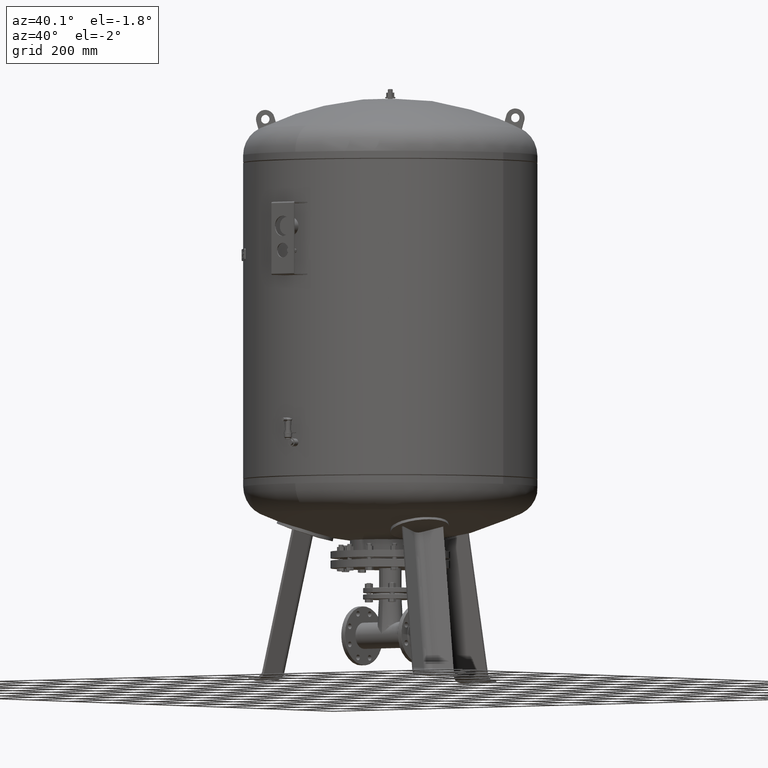
[diagram: clean part render]
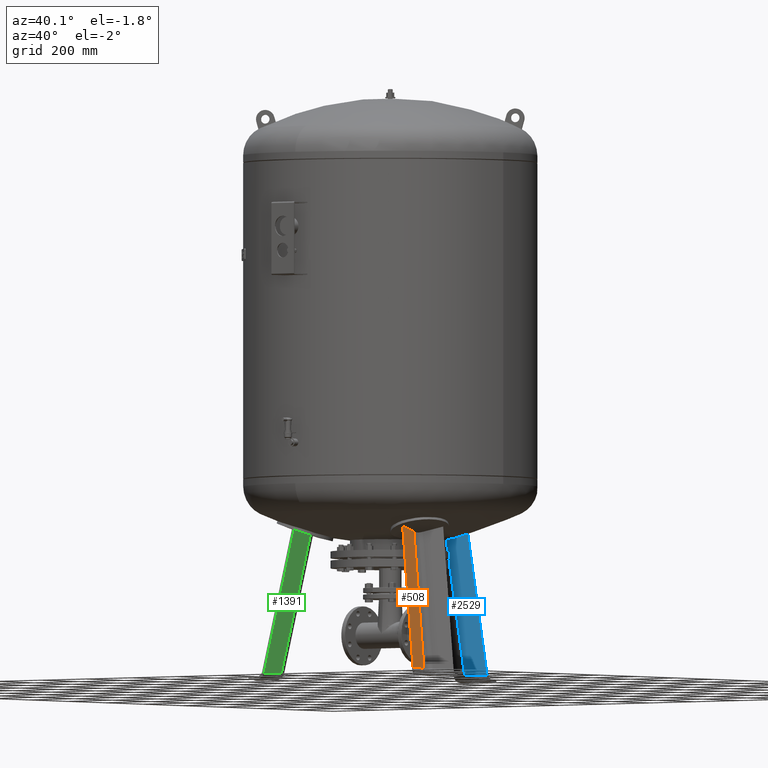
[diagram: same view with three faces highlighted in distinct colors, each labeled with its STEP entity id]
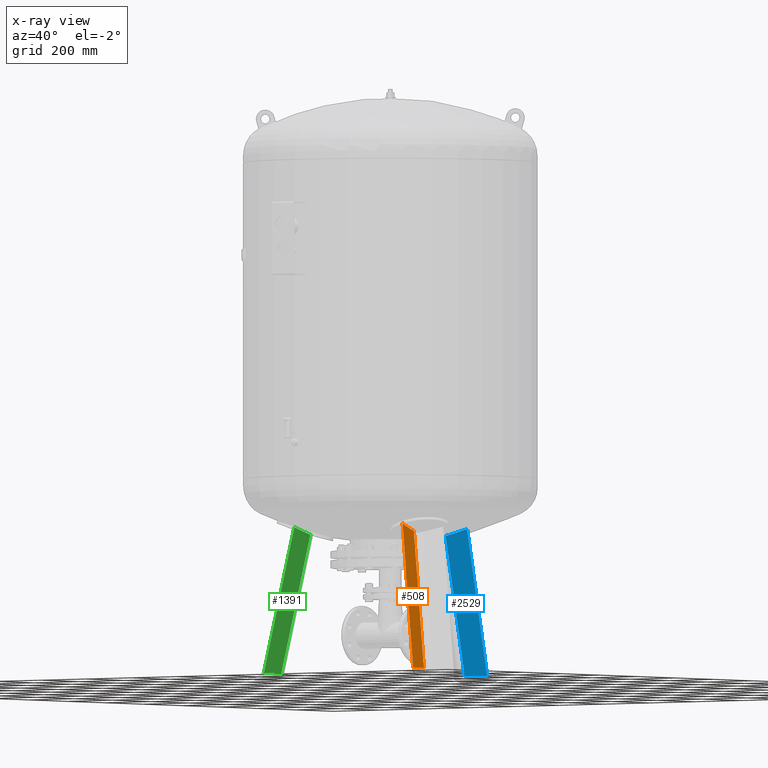
[diagram: x-ray of the same camera — body ghosted, the three highlighted faces saturated]
A machine part, auxiliary view with three faces highlighted in distinct colors.
The next image is the same camera in x-ray (body ghosted, the three faces saturated) — at least one of them is partly hidden behind the body in this view.
Their STEP definitions:

[orange] entity #508 — the highlighted planar face has unit normal (0.9697, 0.1854, 0.1588).
#171=CARTESIAN_POINT('',(319.830394192792940,-203.286932639186120,27.029948423057292));
#172=VERTEX_POINT('',#171);
#244=CARTESIAN_POINT('',(233.833770814888480,-153.636758982554060,494.201352274706380));
#245=VERTEX_POINT('',#244);
#335=CARTESIAN_POINT('',(243.545459295347570,-224.716959764807510,517.895129107029220));
#336=VERTEX_POINT('',#335);
#344=CARTESIAN_POINT('',(233.833770814888480,-153.636758982554060,494.201352274706380));
#345=CARTESIAN_POINT('',(234.145636525133370,-155.785837446084660,494.806356446810070));
#346=CARTESIAN_POINT('',(234.455869085461960,-157.936627893456380,495.423332669959050));
#347=CARTESIAN_POINT('',(235.806048865956340,-167.351452042096270,498.171859028429080));
#348=CARTESIAN_POINT('',(236.830002651362290,-174.632430311933630,500.420860589925100));
#349=CARTESIAN_POINT('',(239.805336106046810,-196.170965889859760,507.401880690415790));
#350=CARTESIAN_POINT('',(241.709926838352800,-210.458800609479230,512.454975054419260));
#351=CARTESIAN_POINT('',(243.545459295347570,-224.716959764807510,517.895129107029220));
#352=B_SPLINE_CURVE_WITH_KNOTS('',3,(#344,#345,#346,#347,#348,#349,#350,#351),.UNSPECIFIED.,.F.,.U.,(4,2,2,4),(5.937335443723129,6.588195328792665,8.784260438390220,13.073486937020286),.UNSPECIFIED.);
#353=EDGE_CURVE('',#245,#336,#352,.T.);
#480=CARTESIAN_POINT('',(333.269673407839720,-192.413335654755090,-67.735293817669458));
#481=DIRECTION('',(0.969740897595359,0.185430570007244,0.158802063077709));
#482=DIRECTION('',(-0.180056805991956,0.103955845408880,0.978147600733806));
#483=AXIS2_PLACEMENT_3D('',#480,#481,#482);
#484=PLANE('',#483);
#485=CARTESIAN_POINT('',(333.903618473282390,-276.885267289667350,27.029948423057292));
#486=VERTEX_POINT('',#485);
#487=CARTESIAN_POINT('',(333.903618473282390,-276.885267289667350,27.029948423057292));
#488=DIRECTION('',(-0.180056805991956,0.103955845408880,0.978147600733805));
#489=VECTOR('',#488,501.831400818981990);
#490=LINE('',#487,#489);
#491=EDGE_CURVE('',#486,#336,#490,.T.);
#492=ORIENTED_EDGE('',*,*,#491,.F.);
#493=CARTESIAN_POINT('',(319.830394192792940,-203.286932639186120,27.029948423057292));
#494=DIRECTION('',(0.187813845079449,-0.982204642422582,0.0));
#495=VECTOR('',#494,74.931772333057651);
#496=LINE('',#493,#495);
#497=EDGE_CURVE('',#172,#486,#496,.T.);
#498=ORIENTED_EDGE('',*,*,#497,.F.);
#499=CARTESIAN_POINT('',(233.833770814888480,-153.636758982554060,494.201352274706380));
#500=DIRECTION('',(0.180056805991956,-0.103955845408880,-0.978147600733806));
#501=VECTOR('',#500,477.608290917625770);
#502=LINE('',#499,#501);
#503=EDGE_CURVE('',#245,#172,#502,.T.);
#504=ORIENTED_EDGE('',*,*,#503,.F.);
#505=ORIENTED_EDGE('',*,*,#353,.T.);
#506=EDGE_LOOP('',(#492,#498,#504,#505));
#507=FACE_OUTER_BOUND('',#506,.T.);
#508=ADVANCED_FACE('',(#507),#484,.T.);

[blue] entity #2529 — the highlighted planar face has unit normal (0.6455, -0.7471, -0.1588).
#2271=CARTESIAN_POINT('',(16.136450826554498,272.008950083506190,491.314238600476020));
#2272=VERTEX_POINT('',#2271);
#2284=CARTESIAN_POINT('',(73.499999999999943,316.529968118506870,515.016008075238010));
#2285=VERTEX_POINT('',#2284);
#2286=CARTESIAN_POINT('',(73.499999999999943,316.529968118506870,515.016008075238010));
#2287=CARTESIAN_POINT('',(62.858036945115671,308.401818457782720,510.001214573362230));
#2288=CARTESIAN_POINT('',(52.229069748678569,300.213795592267620,505.320924596915180));
#2289=CARTESIAN_POINT('',(35.915460153680954,287.534026193424550,498.667159290237180));
#2290=CARTESIAN_POINT('',(30.188304126259531,283.060881804885870,496.433369218256930));
#2291=CARTESIAN_POINT('',(21.696926014053837,276.393125731171150,493.289112018364510));
#2292=CARTESIAN_POINT('',(18.913416046005374,274.201624997825430,492.285612555272960));
#2293=CARTESIAN_POINT('',(16.136450826554498,272.008950083506190,491.314238600476020));
#2294=B_SPLINE_CURVE_WITH_KNOTS('',3,(#2286,#2287,#2288,#2289,#2290,#2291,#2292,#2293),.UNSPECIFIED.,.F.,.U.,(4,2,2,4),(536.762478861198470,540.755951889067660,542.927906845961390,543.990518214376830),.UNSPECIFIED.);
#2295=EDGE_CURVE('',#2285,#2272,#2294,.T.);
#2332=CARTESIAN_POINT('',(16.136450826554547,371.970961811045530,21.029948423057292));
#2333=VERTEX_POINT('',#2332);
#2341=CARTESIAN_POINT('',(16.136450826554547,371.970961811045530,21.029948423057292));
#2342=DIRECTION('',(-1.034504E-016,-0.207911690817760,0.978147600733805));
#2343=VECTOR('',#2342,480.790720975660350);
#2344=LINE('',#2341,#2343);
#2345=EDGE_CURVE('',#2333,#2272,#2344,.T.);
#2476=CARTESIAN_POINT('',(73.500000000000000,421.529946471096990,21.029948423057292));
#2477=VERTEX_POINT('',#2476);
#2478=CARTESIAN_POINT('',(73.500000000000000,421.529946471096990,21.029948423057292));
#2479=DIRECTION('',(-1.125563E-016,-0.207911690817760,0.978147600733806));
#2480=VECTOR('',#2479,505.022002079842310);
#2481=LINE('',#2478,#2480);
#2482=EDGE_CURVE('',#2477,#2285,#2481,.T.);
#2513=CARTESIAN_POINT('',(73.500000000000000,440.397581157592580,-67.735293817669458));
#2514=DIRECTION('',(0.645458033062182,-0.747104967402683,-0.158802063077709));
#2515=DIRECTION('',(1.070315E-016,0.207911690817760,-0.978147600733806));
#2516=AXIS2_PLACEMENT_3D('',#2513,#2514,#2515);
#2517=PLANE('',#2516);
#2518=ORIENTED_EDGE('',*,*,#2345,.F.);
#2519=CARTESIAN_POINT('',(73.500000000000000,421.529946471096990,21.029948423057292));
#2520=DIRECTION('',(-0.756707249513243,-0.653753882232529,0.0));
#2521=VECTOR('',#2520,75.806792138366532);
#2522=LINE('',#2519,#2521);
#2523=EDGE_CURVE('',#2477,#2333,#2522,.T.);
#2524=ORIENTED_EDGE('',*,*,#2523,.F.);
#2525=ORIENTED_EDGE('',*,*,#2482,.T.);
#2526=ORIENTED_EDGE('',*,*,#2295,.T.);
#2527=EDGE_LOOP('',(#2518,#2524,#2525,#2526));
#2528=FACE_OUTER_BOUND('',#2527,.T.);
#2529=ADVANCED_FACE('',(#2528),#2517,.T.);

[green] entity #1391 — the highlighted planar face has unit normal (0.9697, -0.1854, -0.1588).
#1184=CARTESIAN_POINT('',(-314.068076985219480,-199.960057248237350,21.029948423057281));
#1185=VERTEX_POINT('',#1184);
#1252=CARTESIAN_POINT('',(-237.372993449705430,-221.917851237409760,515.016008075238010));
#1253=VERTEX_POINT('',#1252);
#1261=CARTESIAN_POINT('',(-227.498435415772320,-149.979051384467770,491.314238600476020));
#1262=VERTEX_POINT('',#1261);
#1263=CARTESIAN_POINT('',(-227.498435415772320,-149.979051384467770,491.314238600476020));
#1264=CARTESIAN_POINT('',(-228.008864984088210,-153.480311267097700,492.285612555272960));
#1265=CARTESIAN_POINT('',(-228.515005307553620,-156.986651977787320,493.289112018364160));
#1266=CARTESIAN_POINT('',(-230.043762397525770,-167.674279172954130,496.433369218256590));
#1267=CARTESIAN_POINT('',(-231.054041059085250,-174.870713978407570,498.667159290237410));
#1268=CARTESIAN_POINT('',(-233.878238675113070,-195.338599014518650,505.320924596915400));
#1269=CARTESIAN_POINT('',(-235.654790885198570,-208.637566055382450,510.001214573362460));
#1270=CARTESIAN_POINT('',(-237.372993449705430,-221.917851237409760,515.016008075238010));
#1271=B_SPLINE_CURVE_WITH_KNOTS('',3,(#1263,#1264,#1265,#1266,#1267,#1268,#1269,#1270),.UNSPECIFIED.,.F.,.U.,(4,2,2,4),(5.453253502265779,6.515864870681246,8.687819827574995,12.681292855444173),.UNSPECIFIED.);
#1272=EDGE_CURVE('',#1262,#1253,#1271,.T.);
#1341=CARTESIAN_POINT('',(-227.498435415772320,-149.979051384467770,491.314238600476020));
#1342=DIRECTION('',(-0.180056805991956,-0.103955845408880,-0.978147600733805));
#1343=VECTOR('',#1342,480.790720975660350);
#1344=LINE('',#1341,#1343);
#1345=EDGE_CURVE('',#1262,#1185,#1344,.T.);
#1368=CARTESIAN_POINT('',(-326.402879907382330,-188.448790578796210,-67.735293817669458));
#1369=DIRECTION('',(0.969740897595359,-0.185430570007245,-0.158802063077709));
#1370=DIRECTION('',(-0.180056805991956,-0.103955845408880,-0.978147600733806));
#1371=AXIS2_PLACEMENT_3D('',#1368,#1369,#1370);
#1372=PLANE('',#1371);
#1373=CARTESIAN_POINT('',(-328.305642099864660,-274.417840413704710,21.029948423057284));
#1374=VERTEX_POINT('',#1373);
#1375=CARTESIAN_POINT('',(-328.305642099864660,-274.417840413704710,21.029948423057284));
#1376=DIRECTION('',(0.180056805991956,0.103955845408880,0.978147600733806));
#1377=VECTOR('',#1376,505.022002079842310);
#1378=LINE('',#1375,#1377);
#1379=EDGE_CURVE('',#1374,#1253,#1378,.T.);
#1380=ORIENTED_EDGE('',*,*,#1379,.F.);
#1381=CARTESIAN_POINT('',(-314.068076985219480,-199.960057248237350,21.029948423057281));
#1382=DIRECTION('',(-0.187813845079449,-0.982204642422582,4.686537E-017));
#1383=VECTOR('',#1382,75.806792138366575);
#1384=LINE('',#1381,#1383);
#1385=EDGE_CURVE('',#1185,#1374,#1384,.T.);
#1386=ORIENTED_EDGE('',*,*,#1385,.F.);
#1387=ORIENTED_EDGE('',*,*,#1345,.F.);
#1388=ORIENTED_EDGE('',*,*,#1272,.T.);
#1389=EDGE_LOOP('',(#1380,#1386,#1387,#1388));
#1390=FACE_OUTER_BOUND('',#1389,.T.);
#1391=ADVANCED_FACE('',(#1390),#1372,.T.);